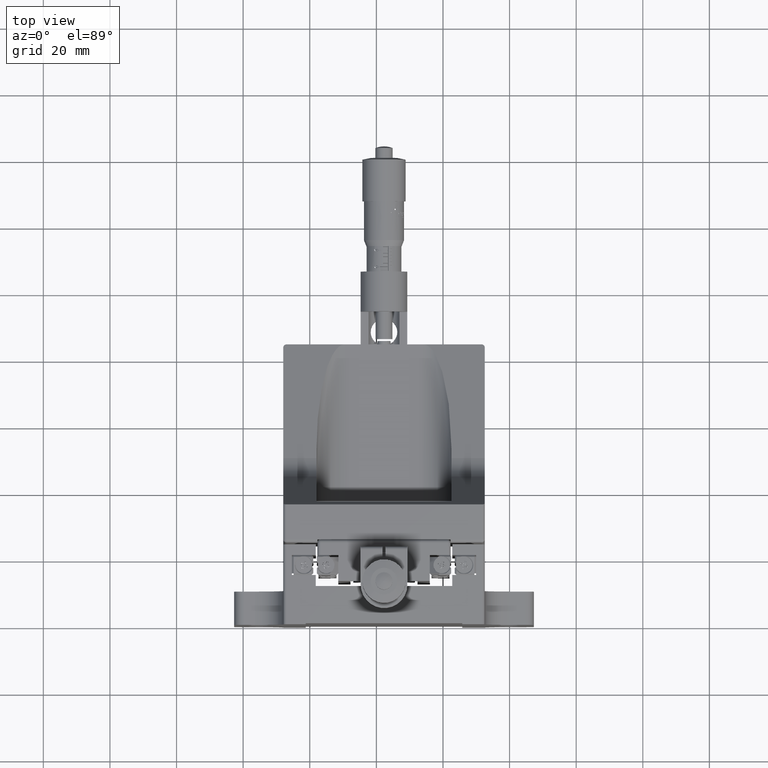
[diagram: clean part render]
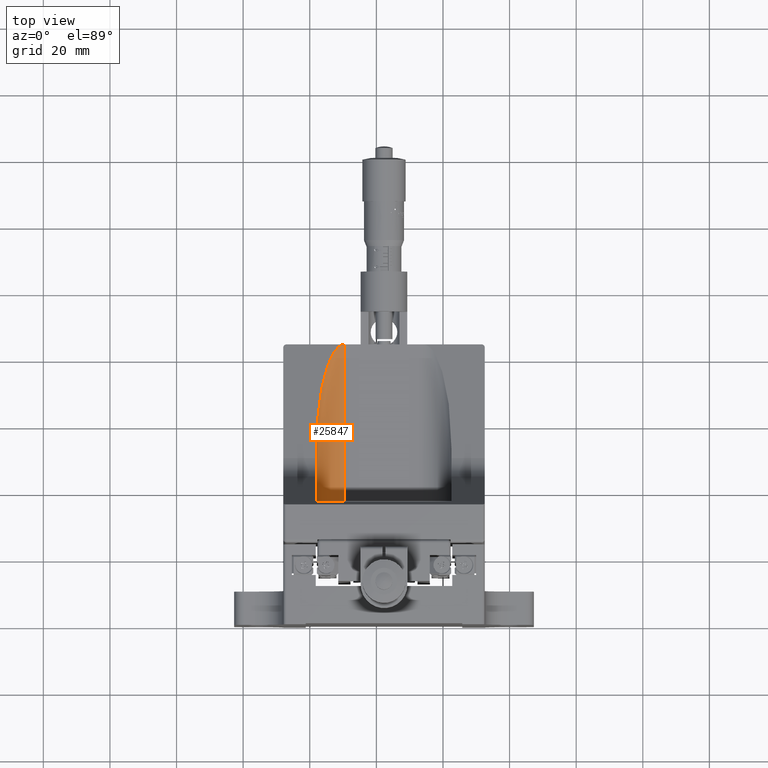
[diagram: same view with one face highlighted and labeled with its STEP entity id]
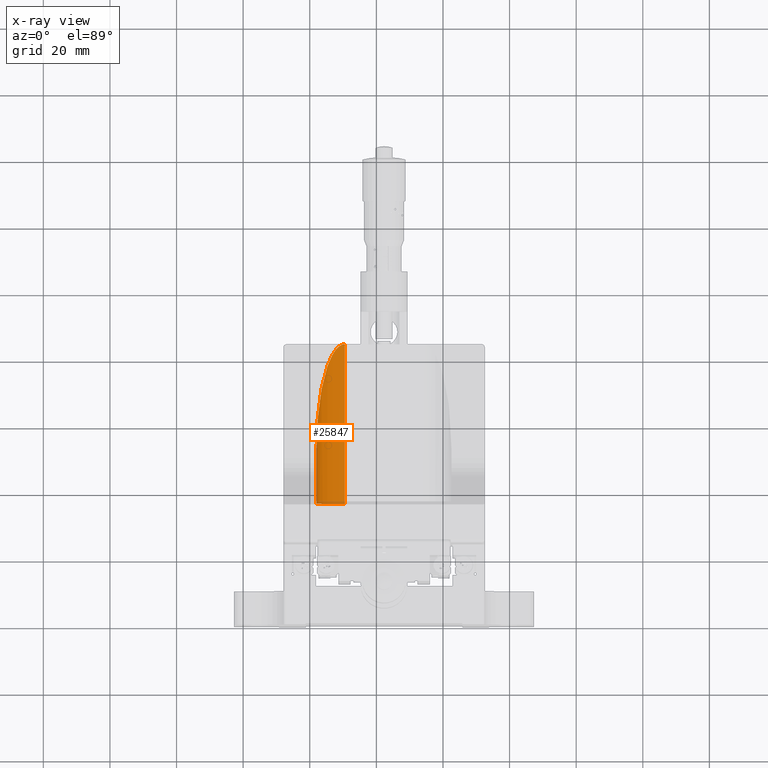
[diagram: x-ray of the same camera — body ghosted, the highlighted face saturated]
A machine part, top view. The second image highlights one B-rep face of the part: STEP entity #25847.
The next image is the same camera in x-ray: the body ghosted, the highlighted face saturated — about 2% of this face is hidden behind the body in this view.
In plain terms, the highlighted cylindrical surface (edge-blend (fillet) strip) has radius 8.5 mm, axis along (-0, 1, -0).
Its self-contained STEP definition (entity closure, byte-faithful):
#277 = DIRECTION ( 'NONE',  ( -0.000000000000000000, 1.000000000000000000, -0.000000000000000000 ) ) ;
#745 = LINE ( 'NONE', #14338, #11946 ) ;
#1303 = VERTEX_POINT ( 'NONE', #22450 ) ;
#2477 = CARTESIAN_POINT ( 'NONE',  ( -17.95935921224442566, 16.88479336248715512, -9.850535375735290700 ) ) ;
#4361 = AXIS2_PLACEMENT_3D ( 'NONE', #28810, #277, #43089 ) ;
#6785 = EDGE_CURVE ( 'NONE', #44953, #27766, #32365, .T. ) ;
#7391 = ORIENTED_EDGE ( 'NONE', *, *, #9343, .F. ) ;
#7920 = ORIENTED_EDGE ( 'NONE', *, *, #6785, .F. ) ;
#9315 = CARTESIAN_POINT ( 'NONE',  ( -17.95935921224442566, 33.59548057421004330, -9.850535375735297805 ) ) ;
#9343 = EDGE_CURVE ( 'NONE', #27766, #44509, #30502, .T. ) ;
#11515 =( BOUNDED_CURVE ( )  B_SPLINE_CURVE ( 3, ( #26835, #23555, #12593, #9315 ),
 .UNSPECIFIED., .F., .T. ) 
 B_SPLINE_CURVE_WITH_KNOTS ( ( 4, 4 ),
 ( 0.000000000000000000, 1.570796326794896336 ),
 .UNSPECIFIED. ) 
 CURVE ( )  GEOMETRIC_REPRESENTATION_ITEM ( )  RATIONAL_B_SPLINE_CURVE ( ( 1.000000000000000000, 0.8047378541243650485, 0.8047378541243650485, 1.000000000000000000 ) ) 
 REPRESENTATION_ITEM ( '' )  );
#11946 = VECTOR ( 'NONE', #22244, 1000.000000000000000 ) ;
#12593 = CARTESIAN_POINT ( 'NONE',  ( -17.95935921224443277, 51.92424429072552527, -14.82972009556397452 ) ) ;
#12755 = DIRECTION ( 'NONE',  ( -0.000000000000000000, 1.000000000000000000, -0.000000000000000000 ) ) ;
#14338 = CARTESIAN_POINT ( 'NONE',  ( -9.459359212244445203, 16.88479336248715512, -18.35053537573528004 ) ) ;
#14587 = DIRECTION ( 'NONE',  ( 0.000000000000000000, 0.000000000000000000, -1.000000000000000000 ) ) ;
#18980 = ORIENTED_EDGE ( 'NONE', *, *, #35700, .T. ) ;
#21354 = CARTESIAN_POINT ( 'NONE',  ( -9.459359212244445203, 16.88479336248715512, -9.850535375735290700 ) ) ;
#22244 = DIRECTION ( 'NONE',  ( -0.000000000000000000, 1.000000000000000000, -0.000000000000000000 ) ) ;
#22450 = CARTESIAN_POINT ( 'NONE',  ( -9.459359212244445203, 64.88463740543960512, -18.35053537573528004 ) ) ;
#22864 = VECTOR ( 'NONE', #12755, 1000.000000000000000 ) ;
#23123 = EDGE_LOOP ( 'NONE', ( #18980, #7391, #7920, #39747 ) ) ;
#23555 = CARTESIAN_POINT ( 'NONE',  ( -14.43854393207312725, 64.88463740543957670, -18.35053537573527649 ) ) ;
#25847 = ADVANCED_FACE ( 'NONE', ( #39362 ), #32787, .F. ) ;
#26835 = CARTESIAN_POINT ( 'NONE',  ( -9.459359212244445203, 64.88463740543960512, -18.35053537573528004 ) ) ;
#27431 = CARTESIAN_POINT ( 'NONE',  ( -9.459359212244445203, 16.88479336248715512, -18.35053537573528004 ) ) ;
#27766 = VERTEX_POINT ( 'NONE', #2477 ) ;
#28372 = DIRECTION ( 'NONE',  ( 0.000000000000000000, 1.000000000000000000, -0.000000000000000000 ) ) ;
#28810 = CARTESIAN_POINT ( 'NONE',  ( -9.459359212244445203, 16.88479336248715512, -9.850535375735290700 ) ) ;
#29527 = EDGE_CURVE ( 'NONE', #44953, #1303, #745, .T. ) ;
#30502 = LINE ( 'NONE', #44776, #22864 ) ;
#32365 = CIRCLE ( 'NONE', #44305, 8.499999999999987566 ) ;
#32787 = CYLINDRICAL_SURFACE ( 'NONE', #4361, 8.499999999999985789 ) ;
#33659 = CARTESIAN_POINT ( 'NONE',  ( -17.95935921224442566, 33.59548057421004330, -9.850535375735297805 ) ) ;
#35700 = EDGE_CURVE ( 'NONE', #1303, #44509, #11515, .T. ) ;
#39362 = FACE_OUTER_BOUND ( 'NONE', #23123, .T. ) ;
#39747 = ORIENTED_EDGE ( 'NONE', *, *, #29527, .T. ) ;
#43089 = DIRECTION ( 'NONE',  ( 0.000000000000000000, 0.000000000000000000, 1.000000000000000000 ) ) ;
#44305 = AXIS2_PLACEMENT_3D ( 'NONE', #21354, #28372, #14587 ) ;
#44509 = VERTEX_POINT ( 'NONE', #33659 ) ;
#44776 = CARTESIAN_POINT ( 'NONE',  ( -17.95935921224442566, 16.88479336248715512, -9.850535375735290700 ) ) ;
#44953 = VERTEX_POINT ( 'NONE', #27431 ) ;